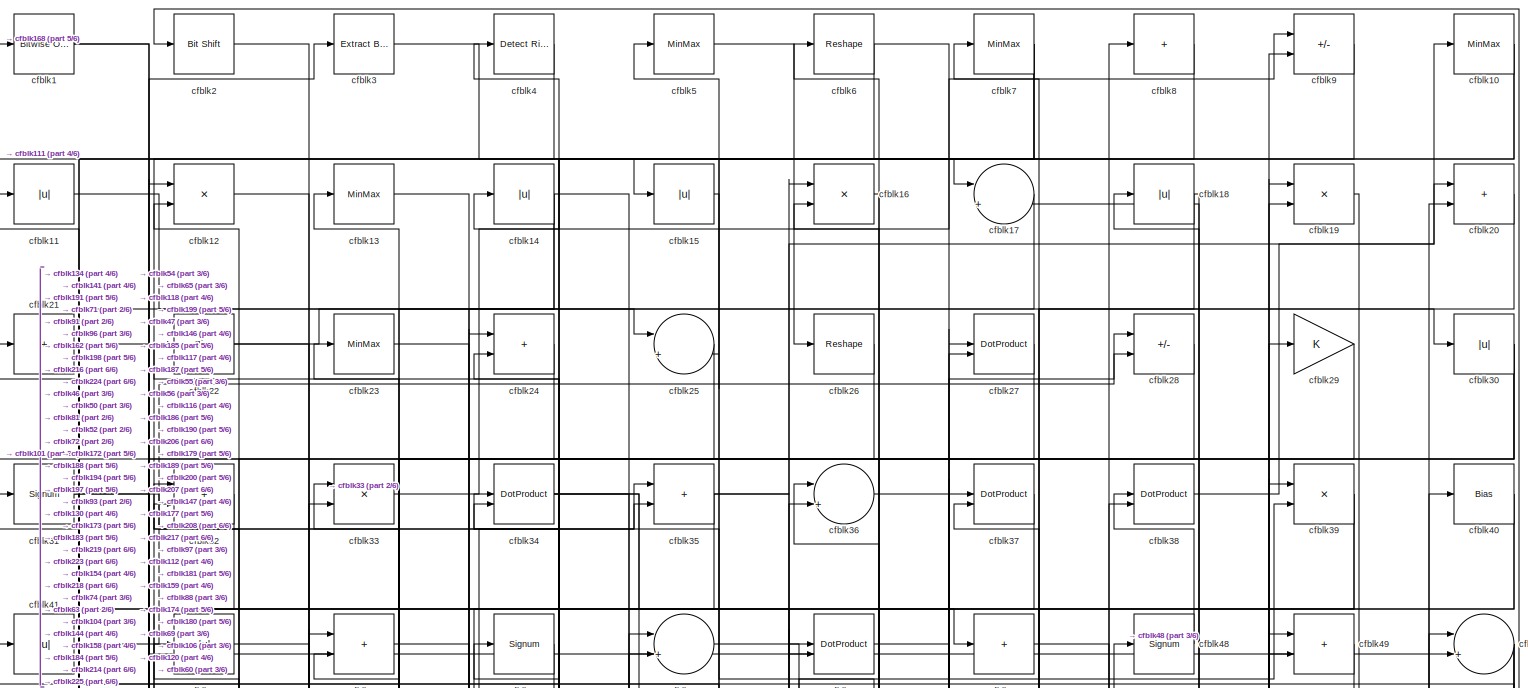
[diagram: root canvas - part 1/6, full width, top band]
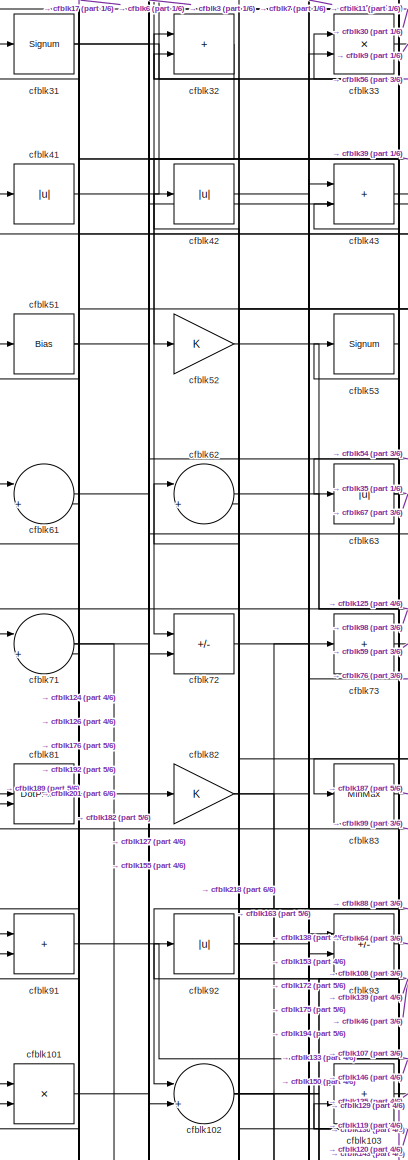
[diagram: root canvas - part 2/6, top left region]
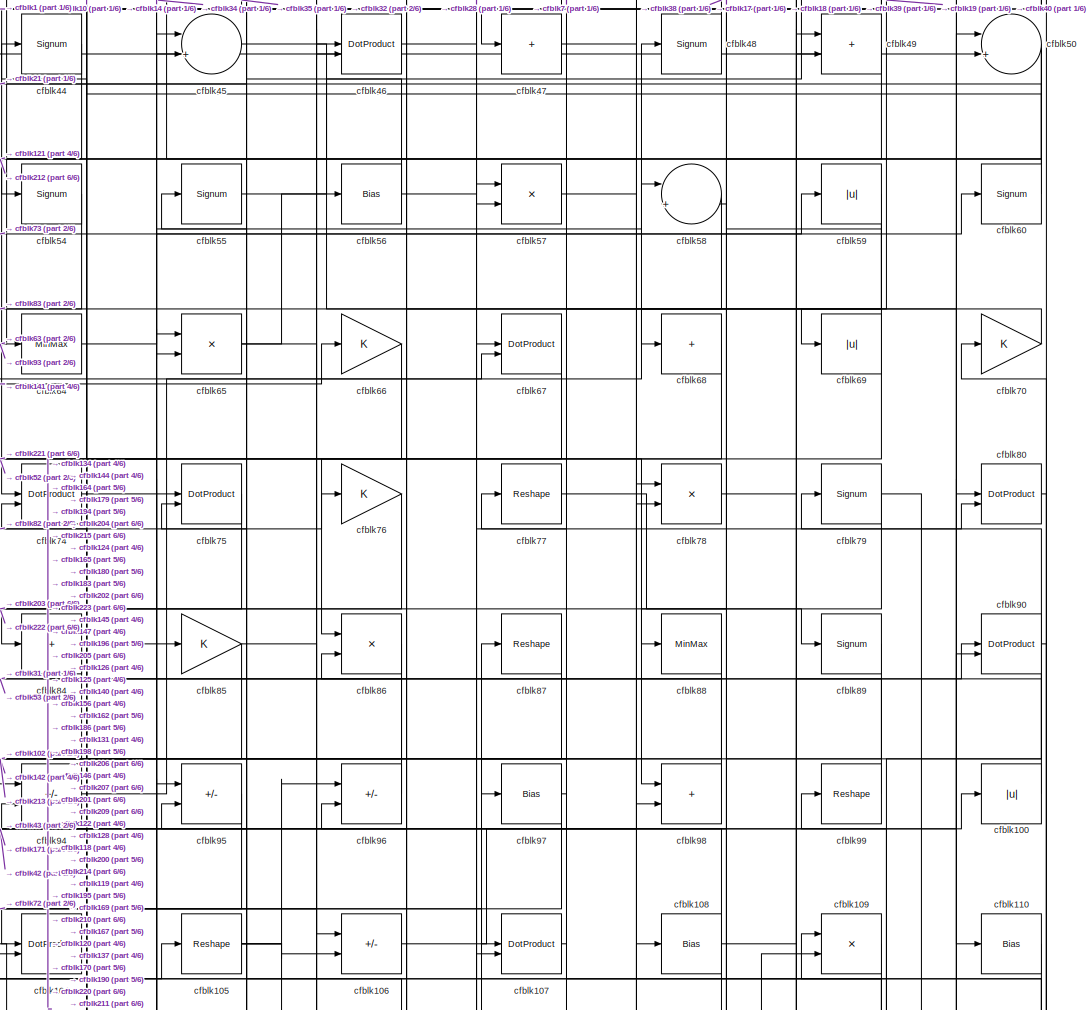
[diagram: root canvas - part 3/6, top center region]
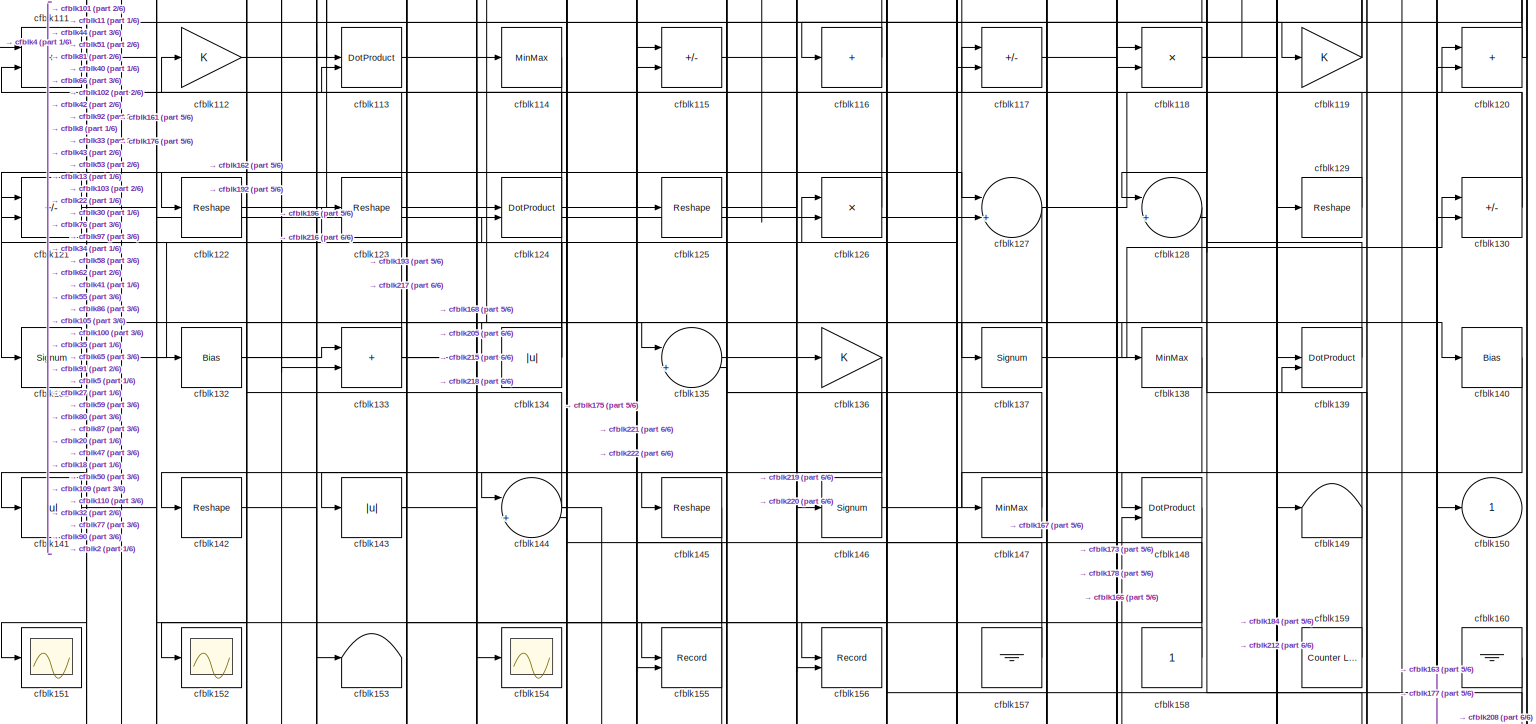
[diagram: root canvas - part 4/6, full width, middle band]
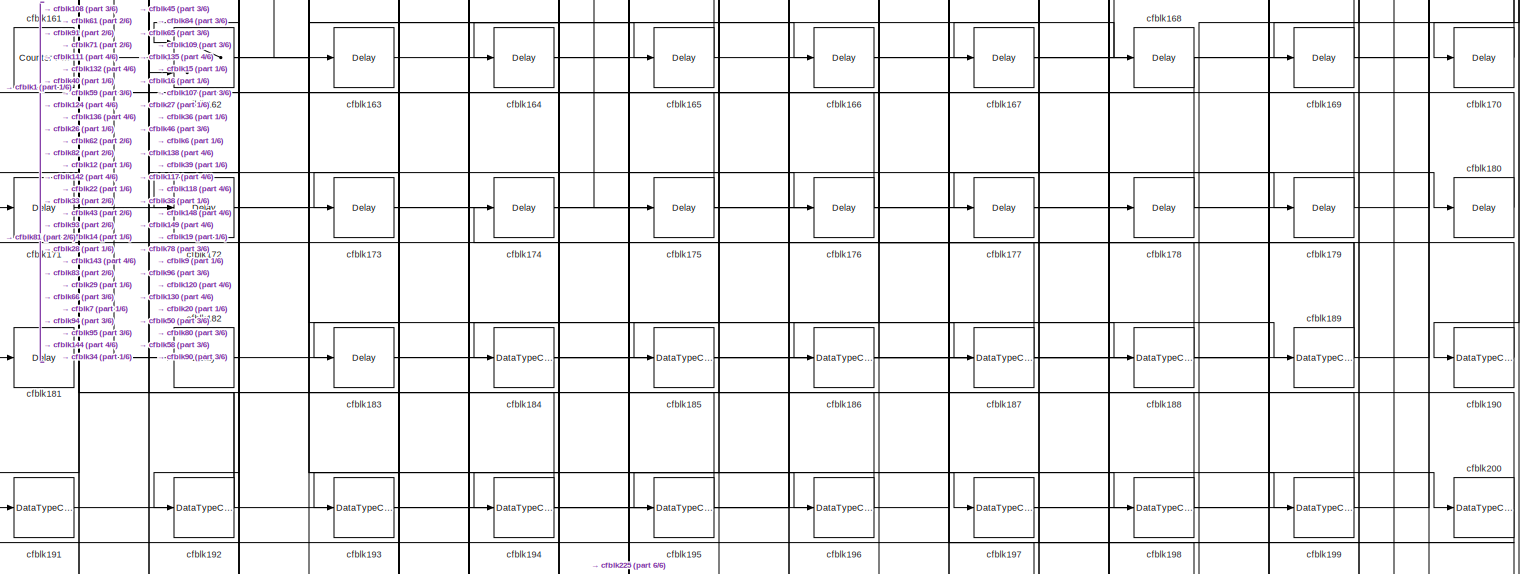
[diagram: root canvas - part 5/6, full width, bottom band]
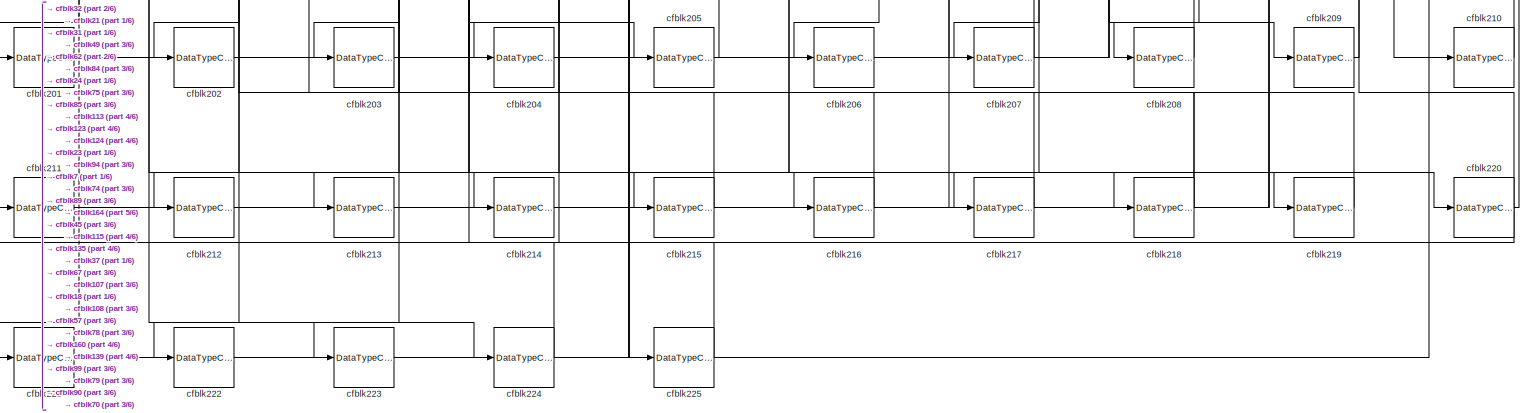
[diagram: root canvas - part 6/6, full width, bottom band]
MODEL slx_cad16e1f6d06
KIND model
CONFIG AbsTol = auto
CONFIG EnableMultiTasking = off
CONFIG FixedStep = auto
CONFIG MaxStep = auto
CONFIG MinStep = auto
CONFIG RelTol = 1e-3
CONFIG SampleTimeConstraint = Unconstrained
CONFIG SolverName = VariableStepAuto
CONFIG StartTime = 0.0
CONFIG StopTime = 10.0
BLOCK [Reference] cfblk1  REF=simulink/Logic and Bit
Operations/Bitwise
Operator
  LibrarySourceBlock = hdlsllib/Logic and Bit\nOperations/Bitwise\nOperator
  SourceBlock = simulink/Logic and Bit\nOperations/Bitwise\nOperator
  SourceType = Bitwise Operator
BLOCK [MinMax] cfblk10
BLOCK [Abs] cfblk100
  SaturateOnIntegerOverflow = off
BLOCK [Product] cfblk101
  Inputs = */
  RndMeth = Zero
  SaturateOnIntegerOverflow = on
BLOCK [Sum] cfblk102
  Inputs = |++
BLOCK [Sum] cfblk103
  IconShape = rectangular
BLOCK [DotProduct] cfblk104
  OutDataTypeStr = Inherit: Inherit via internal rule
BLOCK [Reshape] cfblk105
BLOCK [Sum] cfblk106
  IconShape = rectangular
  Inputs = +-
BLOCK [DotProduct] cfblk107
  OutDataTypeStr = Inherit: Inherit via internal rule
BLOCK [Bias] cfblk108
  Bias = 0.0
  SaturateOnIntegerOverflow = off
BLOCK [Product] cfblk109
  Inputs = */
  RndMeth = Zero
  SaturateOnIntegerOverflow = on
BLOCK [Abs] cfblk11
  SaturateOnIntegerOverflow = off
BLOCK [Bias] cfblk110
  Bias = 0.0
  SaturateOnIntegerOverflow = off
BLOCK [Sum] cfblk111
  IconShape = rectangular
BLOCK [Gain] cfblk112
BLOCK [DotProduct] cfblk113
  OutDataTypeStr = Inherit: Inherit via internal rule
BLOCK [MinMax] cfblk114
BLOCK [Sum] cfblk115
  IconShape = rectangular
  Inputs = +-
BLOCK [Sum] cfblk116
  IconShape = rectangular
  Inputs = +
BLOCK [Sum] cfblk117
  IconShape = rectangular
  Inputs = +-
BLOCK [Product] cfblk118
  Inputs = */
  RndMeth = Zero
  SaturateOnIntegerOverflow = on
BLOCK [Gain] cfblk119
BLOCK [Product] cfblk12
  Inputs = */
  RndMeth = Zero
  SaturateOnIntegerOverflow = on
BLOCK [Sum] cfblk120
  IconShape = rectangular
BLOCK [Sum] cfblk121
  IconShape = rectangular
  Inputs = +-
BLOCK [Reshape] cfblk122
BLOCK [Reshape] cfblk123
BLOCK [DotProduct] cfblk124
  OutDataTypeStr = Inherit: Inherit via internal rule
BLOCK [Reshape] cfblk125
BLOCK [Product] cfblk126
  Inputs = */
  RndMeth = Zero
  SaturateOnIntegerOverflow = on
BLOCK [Sum] cfblk127
  Inputs = |++
BLOCK [Sum] cfblk128
  Inputs = |++
BLOCK [Reshape] cfblk129
BLOCK [MinMax] cfblk13
BLOCK [Sum] cfblk130
  IconShape = rectangular
  Inputs = +-
BLOCK [Signum] cfblk131
BLOCK [Bias] cfblk132
  Bias = 0.0
  SaturateOnIntegerOverflow = off
BLOCK [Sum] cfblk133
  IconShape = rectangular
BLOCK [Abs] cfblk134
  SaturateOnIntegerOverflow = off
BLOCK [Sum] cfblk135
  Inputs = |++
BLOCK [Gain] cfblk136
BLOCK [Signum] cfblk137
BLOCK [MinMax] cfblk138
BLOCK [DotProduct] cfblk139
  OutDataTypeStr = Inherit: Inherit via internal rule
BLOCK [Abs] cfblk14
  SaturateOnIntegerOverflow = off
BLOCK [Bias] cfblk140
  Bias = 0.0
  SaturateOnIntegerOverflow = off
BLOCK [Abs] cfblk141
  SaturateOnIntegerOverflow = off
BLOCK [Reshape] cfblk142
BLOCK [Abs] cfblk143
  SaturateOnIntegerOverflow = off
BLOCK [Sum] cfblk144
  Inputs = |++
BLOCK [Reshape] cfblk145
BLOCK [Signum] cfblk146
BLOCK [MinMax] cfblk147
BLOCK [DotProduct] cfblk148
  OutDataTypeStr = Inherit: Inherit via internal rule
BLOCK [Terminator] cfblk149
BLOCK [Abs] cfblk15
  SaturateOnIntegerOverflow = off
BLOCK [Outport] cfblk150
  VectorParamsAs1DForOutWhenUnconnected = off
BLOCK [Scope] cfblk151
  Floating = off
  NumInputPorts = 1
  ScopeSpecificationString = Simulink.scopes.TimeScopeBlockCfg('CurrentConfiguration', extmgr.ConfigurationSet(extmgr.Configuration('Core','General UI',true),extmgr.Configuration('Core','Source UI',true),extmgr.Configuration('Sources','WiredSimulink',true,'DataLoggingVariableName','ScopeData2','DataLoggingSaveFormat','Array','DataLoggingLimitDataPoints',true,'DataLoggingDecimation','1'),extmgr.Configuration('Visuals','Time Do...<+868ch>  <repeated x3 — deduplicated; at blocks: cfblk151, cfblk152, cfblk154>
BLOCK [Scope] cfblk152
  Floating = off
  NumInputPorts = 1
BLOCK [Terminator] cfblk153
BLOCK [Scope] cfblk154
  Floating = off
  NumInputPorts = 1
BLOCK [Record] cfblk155
  CompatibilityTag = XY
  FileSettingsInternal = {"entries":[{"content":{"excelSettings":{"content":{},"type":"Streamout.ExcelSettings"}},"type":"Streamout.FileSettingStorage","uuid":""}],"packageUris":["http:\/\/schema.mathworks.com\/mf0\/streamout_blocks\/R2020a"],"version":"1.0"}
  Layout = [1 1]
  SignalsInternal = {"entries":[{"content":{"signals":[{"content":{"blockPath":[],"dimensions":[1],"domain":"","lineColor":"#a2142f","plots":[1],"port":1,"signalID":5766,"signalName":"XY Graph:1"},"type":"RecordBlkView.Signal","uuid":""},{"content":{"blockPath":[],"dimensions":[1],"domain":"","lineColor":"#139fff","plots":[1],"port":2,"signalID":5769,"signalName":"XY Graph:2"},"type":"RecordBlkView.Signal","uuid":""}...<+146ch>
  VisualizationBindings = {"xyplotplugin":{"info":[{"series":[{"bindingParametersList":[{"parameter":"X-Axis","signalID":5766,"signalName":"XY Graph:1"},{"parameter":"Y-Axis","signalID":5769,"signalName":"XY Graph:2"}],"seriesID":56463}],"subplotID":1}]}}
  st = -1
BLOCK [Record] cfblk156
  CompatibilityTag = XY
  FileSettingsInternal = {"entries":[{"content":{"excelSettings":{"content":{},"type":"Streamout.ExcelSettings"}},"type":"Streamout.FileSettingStorage","uuid":""}],"packageUris":["http:\/\/schema.mathworks.com\/mf0\/streamout_blocks\/R2020a"],"version":"1.0"}
  Layout = [1 1]
  SignalsInternal = {"entries":[{"content":{"signals":[{"content":{"blockPath":[],"dimensions":[1],"domain":"","lineColor":"#a2142f","plots":[1],"port":1,"signalID":5774,"signalName":"XY Graph:1"},"type":"RecordBlkView.Signal","uuid":""},{"content":{"blockPath":[],"dimensions":[1],"domain":"","lineColor":"#139fff","plots":[1],"port":2,"signalID":5777,"signalName":"XY Graph:2"},"type":"RecordBlkView.Signal","uuid":""}...<+146ch>
  VisualizationBindings = {"xyplotplugin":{"info":[{"series":[{"bindingParametersList":[{"parameter":"X-Axis","signalID":5774,"signalName":"XY Graph:1"},{"parameter":"Y-Axis","signalID":5777,"signalName":"XY Graph:2"}],"seriesID":7171}],"subplotID":1}]}}
  st = -1
BLOCK [Ground] cfblk157
BLOCK [Constant] cfblk158
  SampleTime = -1
BLOCK [Reference] cfblk159  REF=hdlsllib/Sources/Counter
Limited
  SourceBlock = hdlsllib/Sources/Counter\nLimited
  SourceType = Counter Limited
BLOCK [Product] cfblk16
  Inputs = */
  RndMeth = Zero
  SaturateOnIntegerOverflow = on
BLOCK [Ground] cfblk160
BLOCK [Reference] cfblk161  REF=hdlsllib/Sources/Counter
Free-Running
  SourceBlock = hdlsllib/Sources/Counter\nFree-Running
  SourceType = Counter Free-Running
BLOCK [Switch] cfblk162
  InputSameDT = off
  SaturateOnIntegerOverflow = off
BLOCK [Delay] cfblk163
  InputPortMap = u0
  SampleTime = 1
BLOCK [Delay] cfblk164
  InputPortMap = u0
  SampleTime = 1
BLOCK [Delay] cfblk165
  InputPortMap = u0
  SampleTime = 1
BLOCK [Delay] cfblk166
  InputPortMap = u0
  SampleTime = 1
BLOCK [Delay] cfblk167
  InputPortMap = u0
  SampleTime = 1
BLOCK [Delay] cfblk168
  InputPortMap = u0
  SampleTime = 1
BLOCK [Delay] cfblk169
  InputPortMap = u0
  SampleTime = 1
BLOCK [Sum] cfblk17
  Inputs = |++
BLOCK [Delay] cfblk170
  InputPortMap = u0
  SampleTime = 1
BLOCK [Delay] cfblk171
  InputPortMap = u0
  SampleTime = 1
BLOCK [Delay] cfblk172
  InputPortMap = u0
  SampleTime = 1
BLOCK [Delay] cfblk173
  InputPortMap = u0
  SampleTime = 1
BLOCK [Delay] cfblk174
  InputPortMap = u0
  SampleTime = 1
BLOCK [Delay] cfblk175
  InputPortMap = u0
  SampleTime = 1
BLOCK [Delay] cfblk176
  InputPortMap = u0
  SampleTime = 1
BLOCK [Delay] cfblk177
  InputPortMap = u0
  SampleTime = 1
BLOCK [Delay] cfblk178
  InputPortMap = u0
  SampleTime = 1
BLOCK [Delay] cfblk179
  InputPortMap = u0
  SampleTime = 1
BLOCK [Abs] cfblk18
  SaturateOnIntegerOverflow = off
BLOCK [Delay] cfblk180
  InputPortMap = u0
  SampleTime = 1
BLOCK [Delay] cfblk181
  InputPortMap = u0
  SampleTime = 1
BLOCK [Delay] cfblk182
  InputPortMap = u0
  SampleTime = 1
BLOCK [Delay] cfblk183
  InputPortMap = u0
  SampleTime = 1
BLOCK [DataTypeConversion] cfblk184
  RndMeth = Floor
  SaturateOnIntegerOverflow = off
BLOCK [DataTypeConversion] cfblk185
  OutDataTypeStr = uint8
  RndMeth = Floor
  SaturateOnIntegerOverflow = off
BLOCK [DataTypeConversion] cfblk186
  RndMeth = Floor
  SaturateOnIntegerOverflow = off
BLOCK [DataTypeConversion] cfblk187
  OutDataTypeStr = uint8
  RndMeth = Floor
  SaturateOnIntegerOverflow = off
BLOCK [DataTypeConversion] cfblk188
  OutDataTypeStr = uint8
  RndMeth = Floor
  SaturateOnIntegerOverflow = off
BLOCK [DataTypeConversion] cfblk189
  RndMeth = Floor
  SaturateOnIntegerOverflow = off
BLOCK [Product] cfblk19
  Inputs = */
  RndMeth = Zero
  SaturateOnIntegerOverflow = on
BLOCK [DataTypeConversion] cfblk190
  OutDataTypeStr = uint8
  RndMeth = Floor
  SaturateOnIntegerOverflow = off
BLOCK [DataTypeConversion] cfblk191
  OutDataTypeStr = uint8
  RndMeth = Floor
  SaturateOnIntegerOverflow = off
BLOCK [DataTypeConversion] cfblk192
  RndMeth = Floor
  SaturateOnIntegerOverflow = off
BLOCK [DataTypeConversion] cfblk193
  OutDataTypeStr = uint8
  RndMeth = Floor
  SaturateOnIntegerOverflow = off
BLOCK [DataTypeConversion] cfblk194
  RndMeth = Floor
  SaturateOnIntegerOverflow = off
BLOCK [DataTypeConversion] cfblk195
  OutDataTypeStr = uint8
  RndMeth = Floor
  SaturateOnIntegerOverflow = off
BLOCK [DataTypeConversion] cfblk196
  OutDataTypeStr = uint8
  RndMeth = Floor
  SaturateOnIntegerOverflow = off
BLOCK [DataTypeConversion] cfblk197
  RndMeth = Floor
  SaturateOnIntegerOverflow = off
BLOCK [DataTypeConversion] cfblk198
  OutDataTypeStr = uint8
  RndMeth = Floor
  SaturateOnIntegerOverflow = off
BLOCK [DataTypeConversion] cfblk199
  OutDataTypeStr = uint8
  RndMeth = Floor
  SaturateOnIntegerOverflow = off
BLOCK [Reference] cfblk2  REF=hdlsllib/Logic and Bit
Operations/Bit Shift
  SourceBlock = hdlsllib/Logic and Bit\nOperations/Bit Shift
  SourceType = Bit Shift
BLOCK [Sum] cfblk20
  IconShape = rectangular
BLOCK [DataTypeConversion] cfblk200
  RndMeth = Floor
  SaturateOnIntegerOverflow = off
BLOCK [DataTypeConversion] cfblk201
  OutDataTypeStr = uint8
  RndMeth = Floor
  SaturateOnIntegerOverflow = off
BLOCK [DataTypeConversion] cfblk202
  OutDataTypeStr = uint8
  RndMeth = Floor
  SaturateOnIntegerOverflow = off
BLOCK [DataTypeConversion] cfblk203
  OutDataTypeStr = uint8
  RndMeth = Floor
  SaturateOnIntegerOverflow = off
BLOCK [DataTypeConversion] cfblk204
  OutDataTypeStr = uint8
  RndMeth = Floor
  SaturateOnIntegerOverflow = off
BLOCK [DataTypeConversion] cfblk205
  OutDataTypeStr = uint8
  RndMeth = Floor
  SaturateOnIntegerOverflow = off
BLOCK [DataTypeConversion] cfblk206
  RndMeth = Floor
  SaturateOnIntegerOverflow = off
BLOCK [DataTypeConversion] cfblk207
  OutDataTypeStr = uint8
  RndMeth = Floor
  SaturateOnIntegerOverflow = off
BLOCK [DataTypeConversion] cfblk208
  OutDataTypeStr = uint8
  RndMeth = Floor
  SaturateOnIntegerOverflow = off
BLOCK [DataTypeConversion] cfblk209
  OutDataTypeStr = uint8
  RndMeth = Floor
  SaturateOnIntegerOverflow = off
BLOCK [Sum] cfblk21
  IconShape = rectangular
  Inputs = +
BLOCK [DataTypeConversion] cfblk210
  OutDataTypeStr = uint8
  RndMeth = Floor
  SaturateOnIntegerOverflow = off
BLOCK [DataTypeConversion] cfblk211
  OutDataTypeStr = uint8
  RndMeth = Floor
  SaturateOnIntegerOverflow = off
BLOCK [DataTypeConversion] cfblk212
  OutDataTypeStr = uint8
  RndMeth = Floor
  SaturateOnIntegerOverflow = off
BLOCK [DataTypeConversion] cfblk213
  OutDataTypeStr = uint8
  RndMeth = Floor
  SaturateOnIntegerOverflow = off
BLOCK [DataTypeConversion] cfblk214
  OutDataTypeStr = uint8
  RndMeth = Floor
  SaturateOnIntegerOverflow = off
BLOCK [DataTypeConversion] cfblk215
  OutDataTypeStr = uint8
  RndMeth = Floor
  SaturateOnIntegerOverflow = off
BLOCK [DataTypeConversion] cfblk216
  OutDataTypeStr = uint8
  RndMeth = Floor
  SaturateOnIntegerOverflow = off
BLOCK [DataTypeConversion] cfblk217
  OutDataTypeStr = uint8
  RndMeth = Floor
  SaturateOnIntegerOverflow = off
BLOCK [DataTypeConversion] cfblk218
  RndMeth = Floor
  SaturateOnIntegerOverflow = off
BLOCK [DataTypeConversion] cfblk219
  OutDataTypeStr = uint8
  RndMeth = Floor
  SaturateOnIntegerOverflow = off
BLOCK [Bias] cfblk22
  Bias = 0.0
  SaturateOnIntegerOverflow = off
BLOCK [DataTypeConversion] cfblk220
  RndMeth = Floor
  SaturateOnIntegerOverflow = off
BLOCK [DataTypeConversion] cfblk221
  OutDataTypeStr = uint8
  RndMeth = Floor
  SaturateOnIntegerOverflow = off
BLOCK [DataTypeConversion] cfblk222
  OutDataTypeStr = uint8
  RndMeth = Floor
  SaturateOnIntegerOverflow = off
BLOCK [DataTypeConversion] cfblk223
  RndMeth = Floor
  SaturateOnIntegerOverflow = off
BLOCK [DataTypeConversion] cfblk224
  OutDataTypeStr = uint8
  RndMeth = Floor
  SaturateOnIntegerOverflow = off
BLOCK [DataTypeConversion] cfblk225
  OutDataTypeStr = uint8
  RndMeth = Floor
  SaturateOnIntegerOverflow = off
BLOCK [MinMax] cfblk23
BLOCK [Sum] cfblk24
  IconShape = rectangular
BLOCK [Sum] cfblk25
  Inputs = |++
BLOCK [Reshape] cfblk26
BLOCK [DotProduct] cfblk27
  OutDataTypeStr = Inherit: Inherit via internal rule
BLOCK [Sum] cfblk28
  IconShape = rectangular
  Inputs = +-
BLOCK [Gain] cfblk29
BLOCK [Reference] cfblk3  REF=simulink/Logic and Bit
Operations/Extract Bits
  LibrarySourceBlock = hdlsllib/Logic and Bit\nOperations/Extract Bits
  SourceBlock = simulink/Logic and Bit\nOperations/Extract Bits
  SourceType = Extract Bits
BLOCK [Abs] cfblk30
  SaturateOnIntegerOverflow = off
BLOCK [Signum] cfblk31
BLOCK [Sum] cfblk32
  IconShape = rectangular
BLOCK [Product] cfblk33
  Inputs = */
  RndMeth = Zero
  SaturateOnIntegerOverflow = on
BLOCK [DotProduct] cfblk34
  OutDataTypeStr = Inherit: Inherit via internal rule
BLOCK [Sum] cfblk35
  IconShape = rectangular
BLOCK [Sum] cfblk36
  Inputs = |++
BLOCK [DotProduct] cfblk37
  OutDataTypeStr = Inherit: Inherit via internal rule
BLOCK [DotProduct] cfblk38
  OutDataTypeStr = Inherit: Inherit via internal rule
BLOCK [Product] cfblk39
  Inputs = */
  RndMeth = Zero
  SaturateOnIntegerOverflow = on
BLOCK [Reference] cfblk4  REF=hdlsllib/Logic and Bit
Operations/Detect Rise
Positive
  SourceBlock = hdlsllib/Logic and Bit\nOperations/Detect Rise\nPositive
  SourceType = Detect Rise Positive
BLOCK [Bias] cfblk40
  Bias = 0.0
  SaturateOnIntegerOverflow = off
BLOCK [Abs] cfblk41
  SaturateOnIntegerOverflow = off
BLOCK [Abs] cfblk42
  SaturateOnIntegerOverflow = off
BLOCK [Sum] cfblk43
  IconShape = rectangular
BLOCK [Signum] cfblk44
BLOCK [Sum] cfblk45
  Inputs = |++
BLOCK [DotProduct] cfblk46
  OutDataTypeStr = Inherit: Inherit via internal rule
BLOCK [Sum] cfblk47
  IconShape = rectangular
  Inputs = +
BLOCK [Signum] cfblk48
BLOCK [Sum] cfblk49
  IconShape = rectangular
BLOCK [MinMax] cfblk5
BLOCK [Sum] cfblk50
  Inputs = |++
BLOCK [Bias] cfblk51
  Bias = 0.0
  SaturateOnIntegerOverflow = off
BLOCK [Gain] cfblk52
BLOCK [Signum] cfblk53
BLOCK [Signum] cfblk54
BLOCK [Signum] cfblk55
BLOCK [Bias] cfblk56
  Bias = 0.0
  SaturateOnIntegerOverflow = off
BLOCK [Product] cfblk57
  Inputs = */
  RndMeth = Zero
  SaturateOnIntegerOverflow = on
BLOCK [Sum] cfblk58
  Inputs = |++
BLOCK [Abs] cfblk59
  SaturateOnIntegerOverflow = off
BLOCK [Reshape] cfblk6
BLOCK [Signum] cfblk60
BLOCK [Sum] cfblk61
  Inputs = |++
BLOCK [Sum] cfblk62
  Inputs = |++
BLOCK [Abs] cfblk63
  SaturateOnIntegerOverflow = off
BLOCK [MinMax] cfblk64
BLOCK [Product] cfblk65
  Inputs = */
  RndMeth = Zero
  SaturateOnIntegerOverflow = on
BLOCK [Gain] cfblk66
BLOCK [DotProduct] cfblk67
  OutDataTypeStr = Inherit: Inherit via internal rule
BLOCK [Sum] cfblk68
  IconShape = rectangular
  Inputs = +
BLOCK [Abs] cfblk69
  SaturateOnIntegerOverflow = off
BLOCK [MinMax] cfblk7
BLOCK [Gain] cfblk70
BLOCK [Sum] cfblk71
  Inputs = |++
BLOCK [Sum] cfblk72
  IconShape = rectangular
  Inputs = +-
BLOCK [Sum] cfblk73
  IconShape = rectangular
  Inputs = +
BLOCK [DotProduct] cfblk74
  OutDataTypeStr = Inherit: Inherit via internal rule
BLOCK [DotProduct] cfblk75
  OutDataTypeStr = Inherit: Inherit via internal rule
BLOCK [Gain] cfblk76
BLOCK [Reshape] cfblk77
BLOCK [Product] cfblk78
  Inputs = */
  RndMeth = Zero
  SaturateOnIntegerOverflow = on
BLOCK [Signum] cfblk79
BLOCK [Sum] cfblk8
  IconShape = rectangular
  Inputs = +
BLOCK [DotProduct] cfblk80
  OutDataTypeStr = Inherit: Inherit via internal rule
BLOCK [DotProduct] cfblk81
  OutDataTypeStr = Inherit: Inherit via internal rule
BLOCK [Gain] cfblk82
BLOCK [MinMax] cfblk83
BLOCK [Sum] cfblk84
  IconShape = rectangular
  Inputs = +
BLOCK [Gain] cfblk85
BLOCK [Product] cfblk86
  Inputs = */
  RndMeth = Zero
  SaturateOnIntegerOverflow = on
BLOCK [Reshape] cfblk87
BLOCK [MinMax] cfblk88
BLOCK [Signum] cfblk89
BLOCK [Sum] cfblk9
  IconShape = rectangular
  Inputs = +-
BLOCK [DotProduct] cfblk90
  OutDataTypeStr = Inherit: Inherit via internal rule
BLOCK [Sum] cfblk91
  IconShape = rectangular
BLOCK [Abs] cfblk92
  SaturateOnIntegerOverflow = off
BLOCK [Sum] cfblk93
  IconShape = rectangular
  Inputs = +-
BLOCK [Sum] cfblk94
  IconShape = rectangular
  Inputs = +-
BLOCK [Sum] cfblk95
  IconShape = rectangular
  Inputs = +-
BLOCK [Sum] cfblk96
  IconShape = rectangular
  Inputs = +-
BLOCK [Bias] cfblk97
  Bias = 0.0
  SaturateOnIntegerOverflow = off
BLOCK [Sum] cfblk98
  IconShape = rectangular
BLOCK [Reshape] cfblk99
LINE cfblk100:1 -> cfblk44:1
LINE cfblk101:1 -> cfblk155:2
NET cfblk102:1 -> cfblk133:2, cfblk150:1, cfblk46:1
LINE cfblk103:1 -> cfblk135:1
LINE cfblk104:1 -> cfblk34:1
NET cfblk105:1 -> cfblk106:2, cfblk126:2, cfblk96:1
LINE cfblk106:1 -> cfblk40:1
LINE cfblk107:1 -> cfblk207:1
NET cfblk108:1 -> cfblk171:1, cfblk42:1, cfblk90:1
LINE cfblk109:1 -> cfblk195:1
NET cfblk10:1 -> cfblk15:1, cfblk54:1
LINE cfblk110:1 -> cfblk137:1
LINE cfblk111:1 -> cfblk176:1
LINE cfblk112:1 -> cfblk8:1
LINE cfblk113:1 -> cfblk215:1
LINE cfblk114:1 -> cfblk131:1
LINE cfblk115:1 -> cfblk220:1
LINE cfblk116:1 -> cfblk5:1
LINE cfblk117:1 -> cfblk178:1
NET cfblk118:1 -> cfblk109:2, cfblk129:1
NET cfblk119:1 -> cfblk103:2, cfblk109:1
LINE cfblk11:1 -> cfblk93:2
NET cfblk120:1 -> cfblk2:1, cfblk32:1, cfblk77:1
LINE cfblk121:1 -> cfblk127:1
LINE cfblk122:1 -> cfblk105:1
NET cfblk123:1 -> cfblk111:2, cfblk205:1
NET cfblk124:1 -> cfblk101:1, cfblk162:1, cfblk58:1
LINE cfblk125:1 -> cfblk100:1
LINE cfblk126:1 -> cfblk51:1
NET cfblk127:1 -> cfblk120:1, cfblk152:1
LINE cfblk128:1 -> cfblk151:1
LINE cfblk129:1 -> cfblk103:1
LINE cfblk12:1 -> cfblk197:1
NET cfblk130:1 -> cfblk13:1, cfblk33:1
LINE cfblk131:1 -> cfblk80:2
NET cfblk132:1 -> cfblk124:2, cfblk133:1
NET cfblk133:1 -> cfblk114:1, cfblk117:1, cfblk156:2, cfblk81:2
NET cfblk134:1 -> cfblk11:1, cfblk121:2, cfblk123:1
LINE cfblk135:1 -> cfblk219:1
LINE cfblk136:1 -> cfblk192:1
LINE cfblk137:1 -> cfblk130:1
LINE cfblk138:1 -> cfblk167:1
LINE cfblk139:1 -> cfblk92:1
LINE cfblk13:1 -> cfblk154:1
LINE cfblk140:1 -> cfblk148:1
LINE cfblk141:1 -> cfblk66:1
LINE cfblk142:1 -> cfblk196:1
NET cfblk143:1 -> cfblk168:1, cfblk43:2
NET cfblk144:1 -> cfblk112:1, cfblk175:1, cfblk4:1
LINE cfblk145:1 -> cfblk155:1
NET cfblk146:1 -> cfblk41:1, cfblk87:1
LINE cfblk147:1 -> cfblk55:1
LINE cfblk148:1 -> cfblk193:1
NET cfblk14:1 -> cfblk104:2, cfblk183:1, cfblk65:2
LINE cfblk157:1 -> cfblk126:1
LINE cfblk158:1 -> cfblk22:1
LINE cfblk159:1 -> cfblk18:1
LINE cfblk15:1 -> cfblk185:1
LINE cfblk160:1 -> cfblk208:1
LINE cfblk161:1 -> cfblk132:1
NET cfblk162:1 -> cfblk165:1, cfblk166:1
LINE cfblk163:1 -> cfblk130:2
LINE cfblk164:1 -> cfblk225:1
LINE cfblk165:1 -> cfblk65:1
LINE cfblk166:1 -> cfblk148:2
LINE cfblk167:1 -> cfblk50:1
LINE cfblk168:1 -> cfblk1:1
LINE cfblk169:1 -> cfblk96:2
LINE cfblk16:1 -> cfblk186:1
LINE cfblk170:1 -> cfblk58:2
LINE cfblk171:1 -> cfblk107:2
LINE cfblk172:1 -> cfblk33:2
LINE cfblk173:1 -> cfblk118:2
LINE cfblk174:1 -> cfblk9:2
LINE cfblk175:1 -> cfblk93:1
LINE cfblk176:1 -> cfblk61:1
LINE cfblk177:1 -> cfblk120:2
LINE cfblk178:1 -> cfblk135:2
LINE cfblk179:1 -> cfblk94:2
LINE cfblk17:1 -> cfblk91:1
LINE cfblk180:1 -> cfblk19:1
LINE cfblk181:1 -> cfblk38:2
LINE cfblk182:1 -> cfblk62:2
LINE cfblk183:1 -> cfblk45:2
NET cfblk184:1 -> cfblk149:1, cfblk39:1
LINE cfblk185:1 -> cfblk29:1
NET cfblk186:1 -> cfblk6:1, cfblk80:1
LINE cfblk187:1 -> cfblk16:1
LINE cfblk188:1 -> cfblk16:2
NET cfblk189:1 -> cfblk174:1, cfblk81:1
NET cfblk18:1 -> cfblk217:1, cfblk88:1
LINE cfblk190:1 -> cfblk36:1
LINE cfblk191:1 -> cfblk36:2
NET cfblk192:1 -> cfblk61:2, cfblk91:2
LINE cfblk193:1 -> cfblk136:1
NET cfblk194:1 -> cfblk27:2, cfblk43:1
LINE cfblk195:1 -> cfblk95:1
LINE cfblk196:1 -> cfblk95:2
NET cfblk197:1 -> cfblk19:2, cfblk20:2
LINE cfblk198:1 -> cfblk12:1
LINE cfblk199:1 -> cfblk12:2
LINE cfblk19:1 -> cfblk69:1
NET cfblk1:1 -> cfblk46:2, cfblk50:2
NET cfblk200:1 -> cfblk181:1, cfblk27:1
LINE cfblk201:1 -> cfblk78:1
LINE cfblk202:1 -> cfblk78:2
LINE cfblk203:1 -> cfblk94:1
LINE cfblk204:1 -> cfblk75:1
LINE cfblk205:1 -> cfblk75:2
NET cfblk206:1 -> cfblk108:1, cfblk67:1
LINE cfblk207:1 -> cfblk37:1
LINE cfblk208:1 -> cfblk37:2
LINE cfblk209:1 -> cfblk99:1
LINE cfblk20:1 -> cfblk147:1
LINE cfblk210:1 -> cfblk57:1
LINE cfblk211:1 -> cfblk57:2
LINE cfblk212:1 -> cfblk139:1
LINE cfblk213:1 -> cfblk49:1
LINE cfblk214:1 -> cfblk49:2
LINE cfblk215:1 -> cfblk74:2
LINE cfblk216:1 -> cfblk113:1
LINE cfblk217:1 -> cfblk113:2
NET cfblk218:1 -> cfblk124:1, cfblk62:1
LINE cfblk219:1 -> cfblk23:1
LINE cfblk21:1 -> cfblk216:1
NET cfblk220:1 -> cfblk139:2, cfblk211:1, cfblk70:1
LINE cfblk221:1 -> cfblk115:1
LINE cfblk222:1 -> cfblk115:2
NET cfblk223:1 -> cfblk45:1, cfblk90:2
LINE cfblk224:1 -> cfblk24:1
LINE cfblk225:1 -> cfblk24:2
NET cfblk22:1 -> cfblk188:1, cfblk25:1
LINE cfblk23:1 -> cfblk218:1
LINE cfblk24:1 -> cfblk223:1
LINE cfblk25:1 -> cfblk101:2
LINE cfblk26:1 -> cfblk172:1
LINE cfblk27:1 -> cfblk116:1
LINE cfblk28:1 -> cfblk173:1
LINE cfblk29:1 -> cfblk184:1
LINE cfblk2:1 -> cfblk30:1
NET cfblk30:1 -> cfblk144:2, cfblk63:1, cfblk72:2
NET cfblk31:1 -> cfblk224:1, cfblk35:2
LINE cfblk32:1 -> cfblk201:1
LINE cfblk33:1 -> cfblk9:1
NET cfblk34:1 -> cfblk118:1, cfblk199:1, cfblk47:1
NET cfblk35:1 -> cfblk117:2, cfblk20:1, cfblk74:1
LINE cfblk36:1 -> cfblk189:1
LINE cfblk37:1 -> cfblk206:1
LINE cfblk38:1 -> cfblk10:1
NET cfblk39:1 -> cfblk177:1, cfblk52:1
LINE cfblk3:1 -> cfblk17:1
NET cfblk40:1 -> cfblk141:1, cfblk162:2
LINE cfblk41:1 -> cfblk28:1
LINE cfblk42:1 -> cfblk153:1
LINE cfblk43:1 -> cfblk98:2
LINE cfblk44:1 -> cfblk121:1
LINE cfblk45:1 -> cfblk110:1
LINE cfblk46:1 -> cfblk198:1
LINE cfblk47:1 -> cfblk119:1
LINE cfblk48:1 -> cfblk38:1
LINE cfblk49:1 -> cfblk212:1
LINE cfblk4:1 -> cfblk111:1
NET cfblk50:1 -> cfblk104:1, cfblk122:1, cfblk128:1
NET cfblk51:1 -> cfblk127:2, cfblk71:1
LINE cfblk52:1 -> cfblk98:1
LINE cfblk53:1 -> cfblk143:1
LINE cfblk54:1 -> cfblk83:1
LINE cfblk55:1 -> cfblk39:2
NET cfblk56:1 -> cfblk28:2, cfblk32:2
LINE cfblk57:1 -> cfblk209:1
LINE cfblk58:1 -> cfblk97:1
NET cfblk59:1 -> cfblk156:1, cfblk162:3
LINE cfblk5:1 -> cfblk26:1
NET cfblk60:1 -> cfblk21:1, cfblk34:2
LINE cfblk61:1 -> cfblk82:1
LINE cfblk62:1 -> cfblk125:1
NET cfblk63:1 -> cfblk35:1, cfblk67:2
LINE cfblk64:1 -> cfblk60:1
NET cfblk65:1 -> cfblk140:1, cfblk56:1
LINE cfblk66:1 -> cfblk164:1
LINE cfblk67:1 -> cfblk221:1
LINE cfblk68:1 -> cfblk86:1
NET cfblk69:1 -> cfblk17:2, cfblk84:1
NET cfblk6:1 -> cfblk179:1, cfblk71:2
LINE cfblk70:1 -> cfblk68:1
NET cfblk71:1 -> cfblk102:2, cfblk182:1
LINE cfblk72:1 -> cfblk107:1
LINE cfblk73:1 -> cfblk59:1
LINE cfblk74:1 -> cfblk85:1
LINE cfblk75:1 -> cfblk203:1
LINE cfblk76:1 -> cfblk134:1
LINE cfblk77:1 -> cfblk89:1
LINE cfblk78:1 -> cfblk200:1
NET cfblk79:1 -> cfblk210:1, cfblk222:1
NET cfblk7:1 -> cfblk191:1, cfblk214:1, cfblk72:1
LINE cfblk80:1 -> cfblk190:1
LINE cfblk81:1 -> cfblk3:1
NET cfblk82:1 -> cfblk163:1, cfblk76:1
LINE cfblk83:1 -> cfblk187:1
NET cfblk84:1 -> cfblk180:1, cfblk202:1
NET cfblk85:1 -> cfblk106:1, cfblk213:1
LINE cfblk86:1 -> cfblk145:1
LINE cfblk87:1 -> cfblk142:1
LINE cfblk88:1 -> cfblk102:1
LINE cfblk89:1 -> cfblk204:1
LINE cfblk8:1 -> cfblk25:2
NET cfblk90:1 -> cfblk128:2, cfblk169:1, cfblk170:1, cfblk79:1
LINE cfblk91:1 -> cfblk146:1
NET cfblk92:1 -> cfblk138:1, cfblk73:1
LINE cfblk93:1 -> cfblk64:1
LINE cfblk94:1 -> cfblk48:1
LINE cfblk95:1 -> cfblk194:1
LINE cfblk96:1 -> cfblk31:1
NET cfblk97:1 -> cfblk144:1, cfblk7:1
LINE cfblk98:1 -> cfblk86:2
LINE cfblk99:1 -> cfblk53:1
LINE cfblk9:1 -> cfblk14:1
note: NET lines group one-source signal fan-out (src -> all destinations, sorted); 1:1 wires keep LINE
